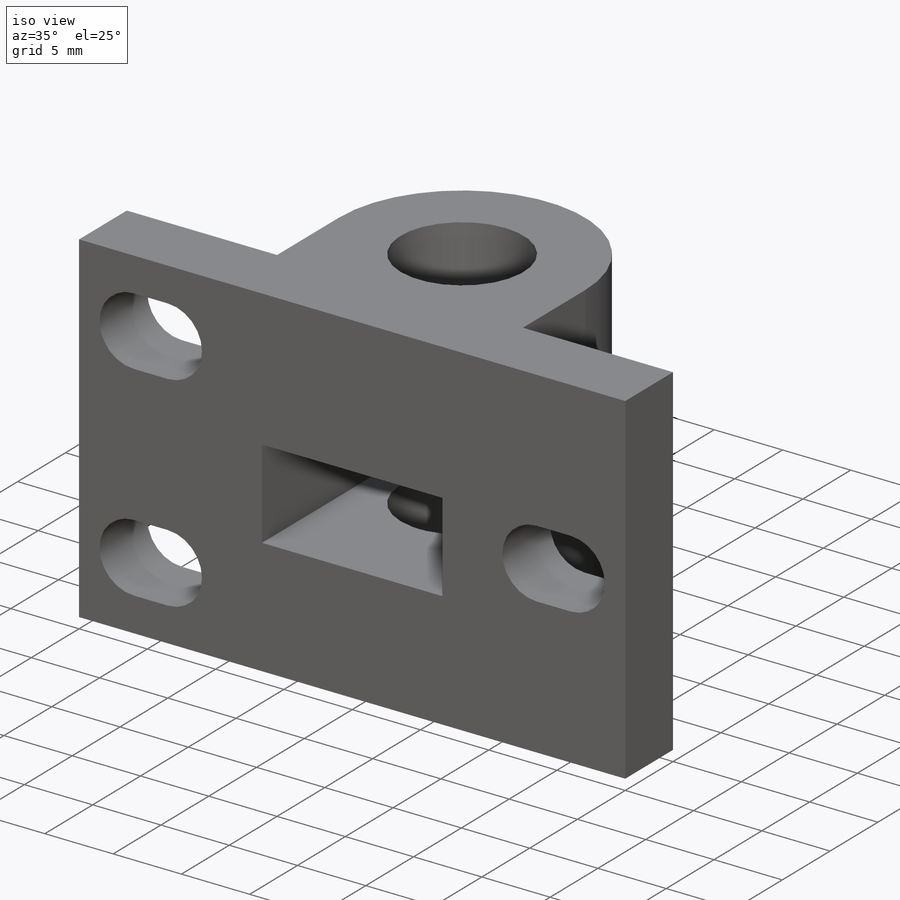
[diagram: iso view]
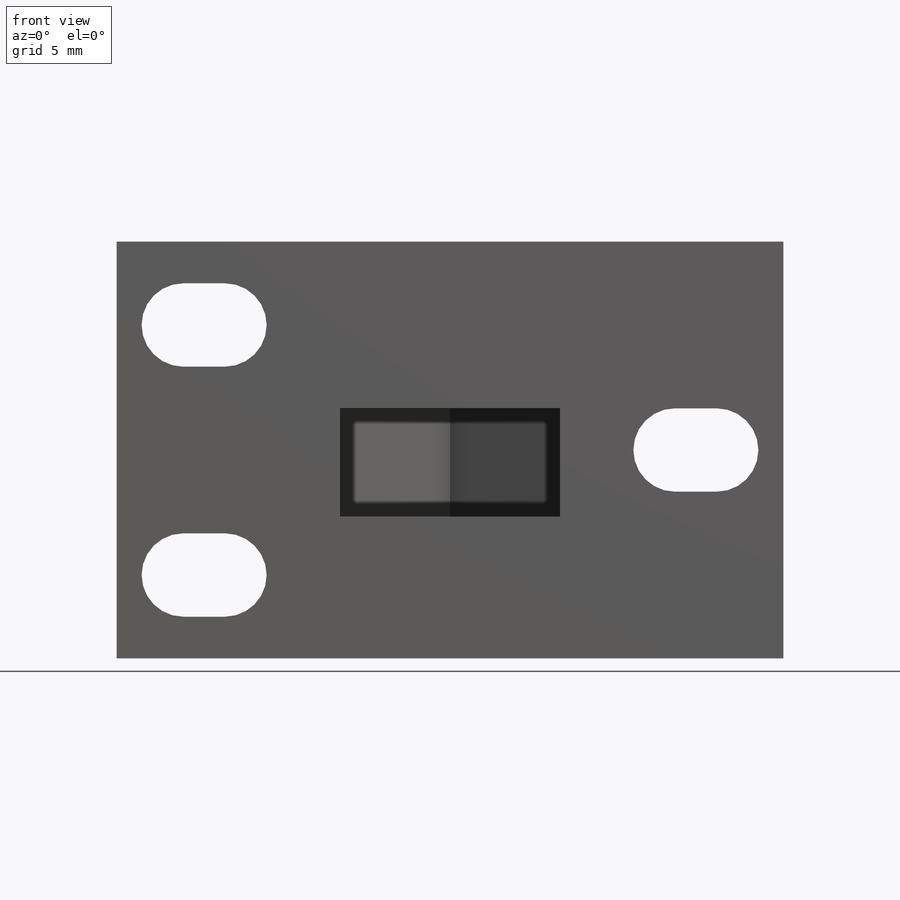
[diagram: front view]
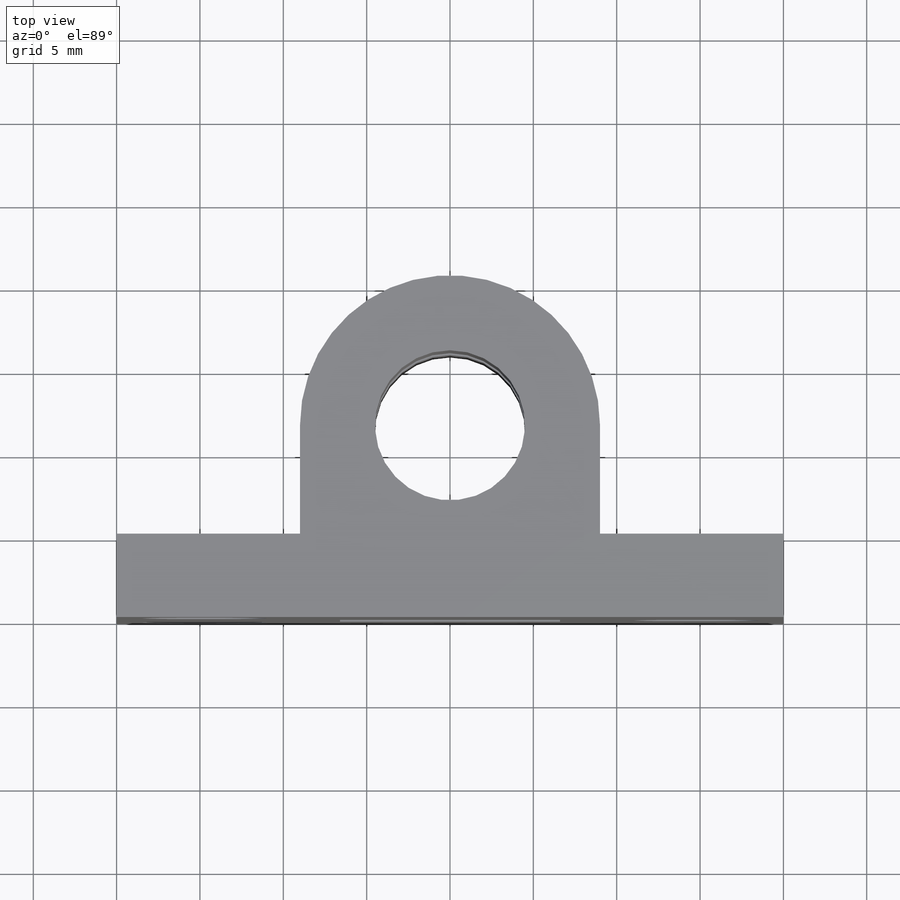
[diagram: top view]
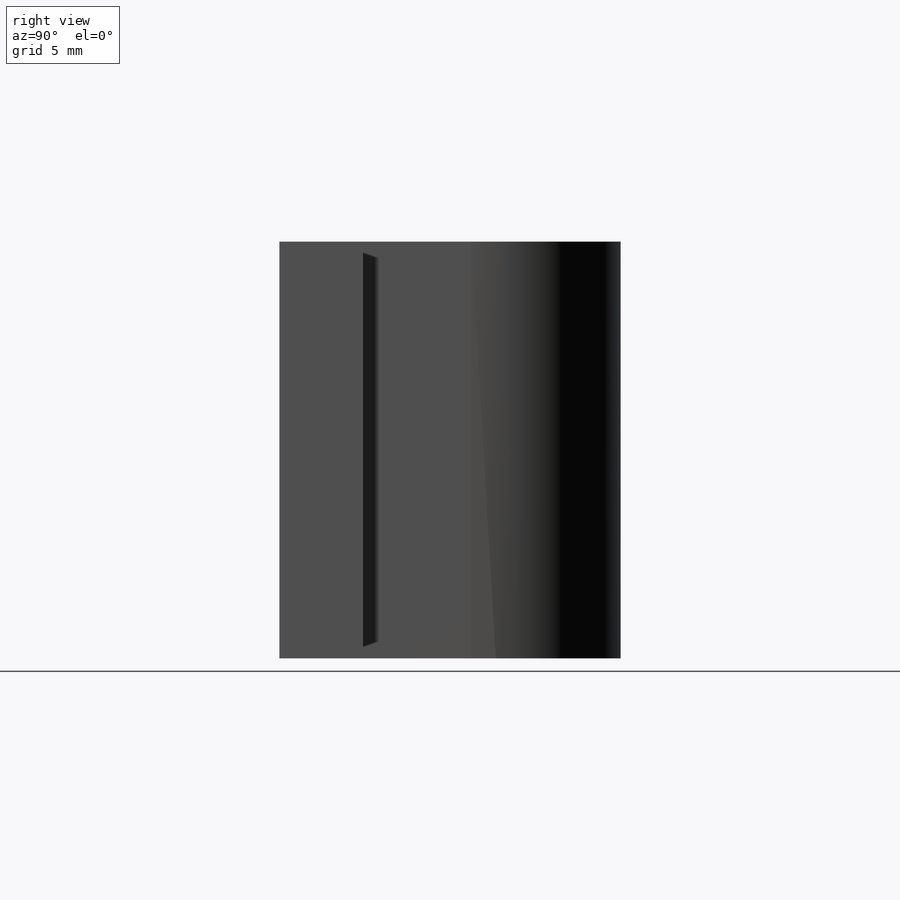
[diagram: right view]
SOLIDWORKS PART (.sldprt)
format: sldprt  version: not decoded by parser v0  size: 231,936 bytes
history: native  units: mm
features: sketch x4, cut_extrude x3, plane x2, material x1, extrude x1 (+11 scaffold rows collapsed)
feature tree (22):
  scaffold x11  (default folders/planes/origin — collapsed)
  material  "Copper"
  sketch  "Sketch1"  dims[c1.D2=7.75mm c1.D1=4.5mm c1.D3=9.0mm c1.D4=9.0mm c2.D1=25.0mm c2.D2=24.59mm c2.D3=3.0mm c3.D1=24.59mm c3.D2=24.59mm c4.D1=11.5mm c4.D2=20.0mm c4.D3=~14.224173mm]
  extrude  "Boss-Extrude1"  Depth=25mm
  plane  "Plane1"  Offset=10mm
  sketch  "Sketch2"
  cut_extrude  "Cut-Extrude1"  Depth=6.5mm
  plane  "Plane2"
  sketch  "Sketch4"  dims[D1=6.5mm D2=13.0mm]
  cut_extrude  "Cut-Extrude2"  [1 undecoded]
  sketch  "Sketch5"  dims[c1.D1=12.5mm c1.D2=4.0mm c1.D3=2.5mm c1.D4=2.5mm c1.D5=2.5mm c2.D4=~5.663967mm c2.D5=4.0mm c2.D6=~1.663967mm c3.D4=2.5mm c3.D6=5.0mm c3.D7=2.5mm c3.D8=4.0mm c3.D9=5.0mm]
  cut_extrude  "Cut-Extrude3"  [1 undecoded]
decode coverage: 5 of 8 modeling features carry decoded parameters
note: ~ marks probable driven/reference dimensions
note: 2 parameter values undecoded
note: suppression state not decoded; provenance and decode notes live in map.json
